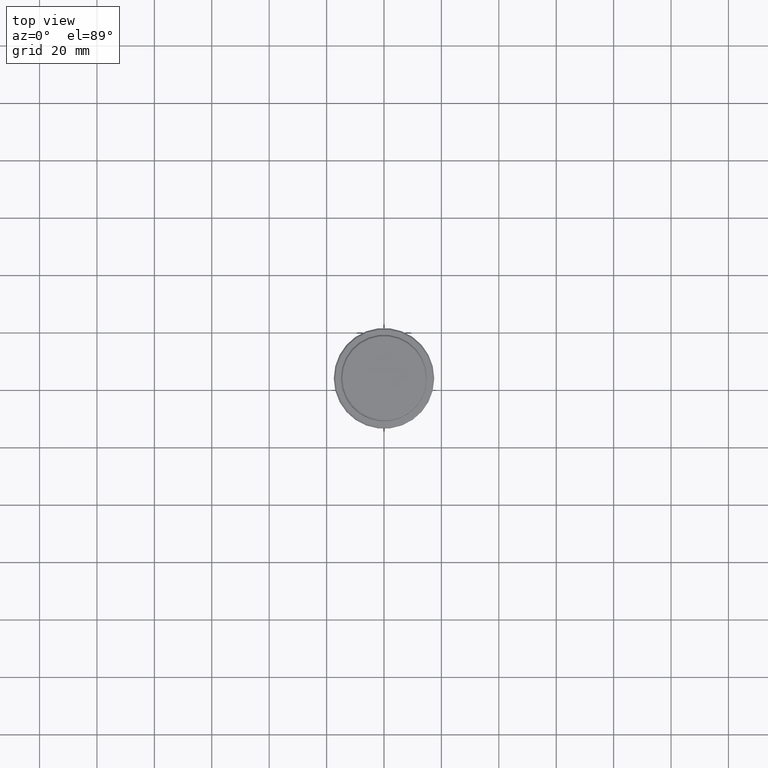
[diagram: clean part render]
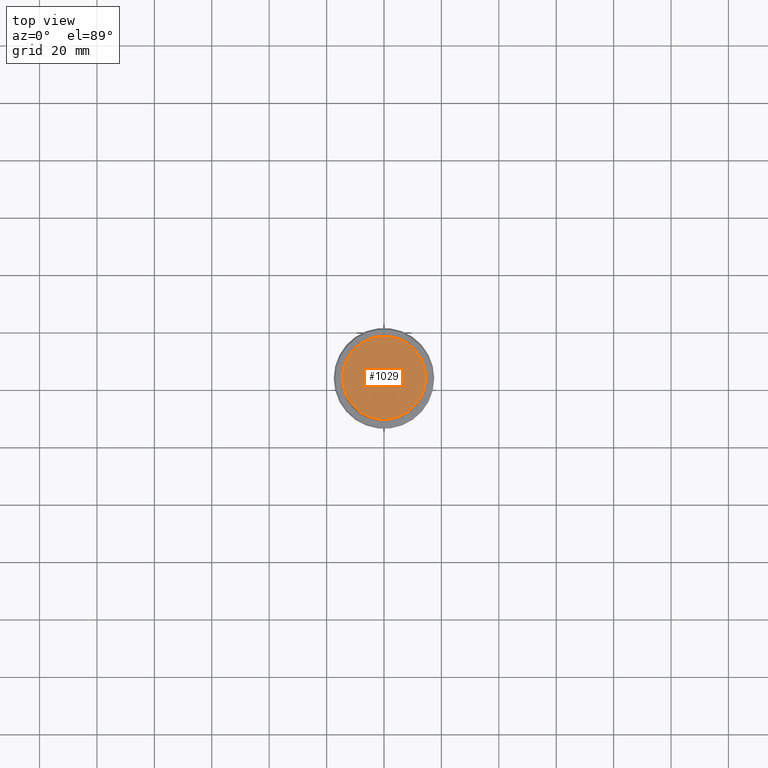
[diagram: same view with one face highlighted and labeled with its STEP entity id]
A machine part, top view. The second image highlights one B-rep face of the part: STEP entity #1029.
In plain terms, the highlighted planar face has unit normal (0, -0, 1).
Its self-contained STEP definition (entity closure, byte-faithful):
#34 = FACE_OUTER_BOUND ( 'NONE', #123, .T. ) ;
#45 = ORIENTED_EDGE ( 'NONE', *, *, #656, .T. ) ;
#123 = EDGE_LOOP ( 'NONE', ( #433, #45 ) ) ;
#133 = CARTESIAN_POINT ( 'NONE',  ( 0.000000000000000000, 0.000000000000000000, 0.000000000000000000 ) ) ;
#138 = DIRECTION ( 'NONE',  ( 1.000000000000000000, 0.000000000000000000, 0.000000000000000000 ) ) ;
#224 = PLANE ( 'NONE',  #1315 ) ;
#342 = DIRECTION ( 'NONE',  ( -0.000000000000000000, -0.000000000000000000, 1.000000000000000000 ) ) ;
#433 = ORIENTED_EDGE ( 'NONE', *, *, #1089, .T. ) ;
#445 = CIRCLE ( 'NONE', #959, 14.49999999999998401 ) ;
#605 = DIRECTION ( 'NONE',  ( 1.000000000000000000, 0.000000000000000000, 0.000000000000000000 ) ) ;
#656 = EDGE_CURVE ( 'NONE', #804, #982, #1084, .T. ) ;
#804 = VERTEX_POINT ( 'NONE', #1235 ) ;
#878 = CARTESIAN_POINT ( 'NONE',  ( -14.49999999999998401, 0.000000000000000000, 0.000000000000000000 ) ) ;
#888 = CARTESIAN_POINT ( 'NONE',  ( 0.000000000000000000, 0.000000000000000000, 0.000000000000000000 ) ) ;
#959 = AXIS2_PLACEMENT_3D ( 'NONE', #133, #1102, #605 ) ;
#982 = VERTEX_POINT ( 'NONE', #878 ) ;
#1004 = DIRECTION ( 'NONE',  ( 1.000000000000000000, 0.000000000000000000, 0.000000000000000000 ) ) ;
#1029 = ADVANCED_FACE ( 'NONE', ( #34 ), #224, .T. ) ;
#1084 = CIRCLE ( 'NONE', #1249, 14.49999999999998401 ) ;
#1089 = EDGE_CURVE ( 'NONE', #982, #804, #445, .T. ) ;
#1095 = CARTESIAN_POINT ( 'NONE',  ( 0.000000000000000000, 0.000000000000000000, 0.000000000000000000 ) ) ;
#1102 = DIRECTION ( 'NONE',  ( -0.000000000000000000, -0.000000000000000000, 1.000000000000000000 ) ) ;
#1119 = DIRECTION ( 'NONE',  ( 0.000000000000000000, -0.000000000000000000, 1.000000000000000000 ) ) ;
#1235 = CARTESIAN_POINT ( 'NONE',  ( 14.49999999999998401, 1.806354028742345013E-15, 0.000000000000000000 ) ) ;
#1249 = AXIS2_PLACEMENT_3D ( 'NONE', #888, #342, #1004 ) ;
#1315 = AXIS2_PLACEMENT_3D ( 'NONE', #1095, #1119, #138 ) ;